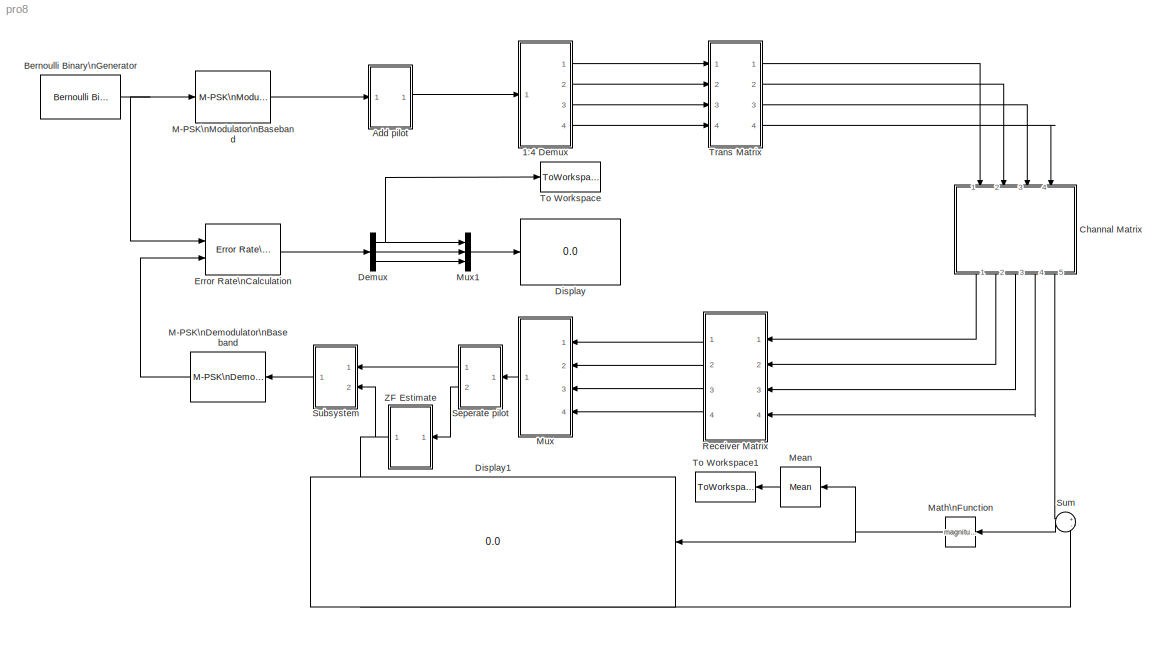
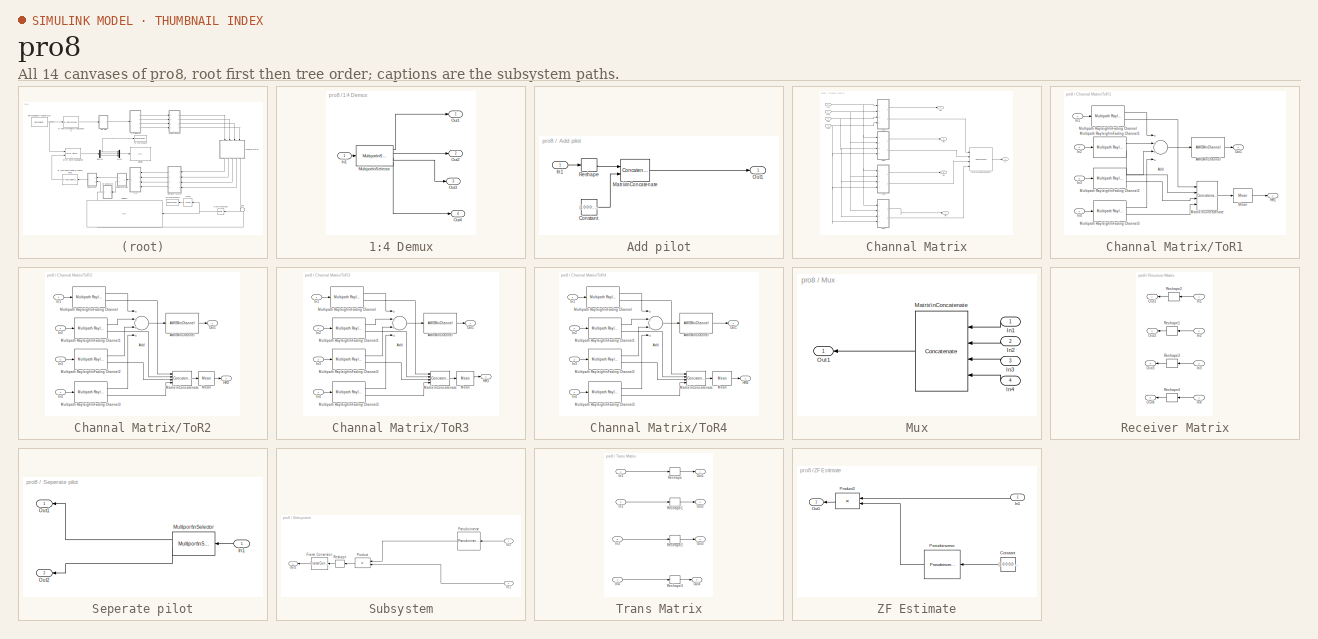
[diagram: thumbnail index - all 14 canvases of the model, root first then tree order]
MODEL pro8
KIND model
BLOCK [SubSystem] 1:4 Demux
  FunctionWithSeparateData = off
  MaskHideContents = off
  MinAlgLoopOccurrences = off
  Opaque = off
  Ports = [1, 4]
  PropExecContextOutsideSubsystem = off
  RTWSystemCode = Auto
  RequestExecContextInheritance = off
  SID = 126
BLOCK [Inport] 1:4 Demux/In1
  IconDisplay = Port number
  SID = 129
BLOCK [Reference] 1:4 Demux/Multiport\nSelector  REF=dspindex/Multiport\nSelector
  Ports = [1, 4]
  SID = 19
  SourceBlock = dspindex/Multiport\nSelector
  SourceType = Multiport Selector
  idxCellArray = { 1, 2, 3, 4 }
  idxErrMode = Clip Index
  rowsOrCols = Rows
BLOCK [Outport] 1:4 Demux/Out1
  IconDisplay = Port number
  SID = 127
BLOCK [Outport] 1:4 Demux/Out2
  IconDisplay = Port number
  Port = 2
  SID = 128
BLOCK [Outport] 1:4 Demux/Out3
  IconDisplay = Port number
  Port = 3
  SID = 130
BLOCK [Outport] 1:4 Demux/Out4
  IconDisplay = Port number
  Port = 4
  SID = 131
BLOCK [SubSystem] Add pilot
  FunctionWithSeparateData = off
  MaskHideContents = off
  MinAlgLoopOccurrences = off
  Opaque = off
  Ports = [1, 1]
  PropExecContextOutsideSubsystem = off
  RTWSystemCode = Auto
  RequestExecContextInheritance = off
  SID = 84
BLOCK [Constant] Add pilot/Constant
  OutDataType = fixdt(1, 16)
  OutScaling = 2^0
  SID = 17
  SampleTime = 1e-4
  Value = [1 0 0 0 ; 0 1 0 0;0 0 1 0; 0 0 0 1]
BLOCK [Inport] Add pilot/In1
  IconDisplay = Port number
  SID = 85
BLOCK [Concatenate] Add pilot/Matrix\nConcatenate
  ConcatenateDimension = 2
  Mode = Multidimensional array
  Ports = [2, 1]
  SID = 16
BLOCK [Outport] Add pilot/Out1
  IconDisplay = Port number
  SID = 86
BLOCK [Reshape] Add pilot/Reshape
  OutputDimensionality = Customize
  OutputDimensions = [4,96]
  Ports = [1, 1]
  SID = 18
BLOCK [Reference] Bernoulli Binary\nGenerator  REF=commrandsrc2/Bernoulli Binary\nGenerator
  DialogController = commDDGCreate
  DialogControllerArgs = DataTag0
  FunctionWithSeparateData = off
  P = 0.5
  Ports = [0, 1]
  RTWMemSecDataConstants = Inherit from model
  RTWMemSecDataInternal = Inherit from model
  RTWMemSecDataParameters = Inherit from model
  RTWMemSecFuncExecute = Inherit from model
  RTWMemSecFuncInitTerm = Inherit from model
  SID = 13
  ShowPortLabels = FromPortIcon
  SourceBlock = commrandsrc2/Bernoulli Binary\nGenerator
  SourceType = Bernoulli Binary Generator
  SystemSampleTime = -1
  Ts = 1e-4/(4*4*96)
  frameBased = on
  orient = off
  outDataType = boolean
  sampPerFrame = 4*4*96
  seed = 61
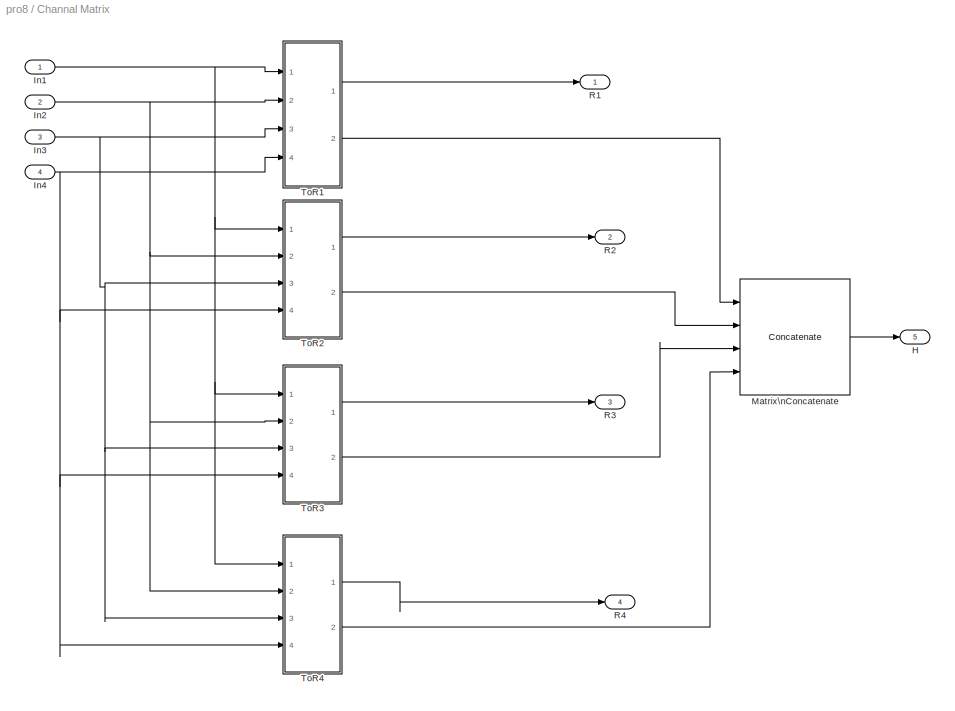
BLOCK [SubSystem] Channal Matrix
  FunctionWithSeparateData = off
  MaskHideContents = off
  MinAlgLoopOccurrences = off
  Opaque = off
  Ports = [4, 5]
  PropExecContextOutsideSubsystem = off
  RTWSystemCode = Auto
  RequestExecContextInheritance = off
  SID = 142
BLOCK [Outport] Channal Matrix/H
  IconDisplay = Port number
  Port = 5
  SID = 409
BLOCK [Inport] Channal Matrix/In1
  IconDisplay = Port number
  SID = 143
BLOCK [Inport] Channal Matrix/In2
  IconDisplay = Port number
  Port = 2
  SID = 144
BLOCK [Inport] Channal Matrix/In3
  IconDisplay = Port number
  Port = 3
  SID = 146
BLOCK [Inport] Channal Matrix/In4
  IconDisplay = Port number
  Port = 4
  SID = 147
BLOCK [Concatenate] Channal Matrix/Matrix\nConcatenate
  Mode = Multidimensional array
  NumInputs = 4
  Ports = [4, 1]
  SID = 408
BLOCK [Outport] Channal Matrix/R1
  IconDisplay = Port number
  SID = 145
BLOCK [Outport] Channal Matrix/R2
  IconDisplay = Port number
  Port = 2
  SID = 208
BLOCK [Outport] Channal Matrix/R3
  IconDisplay = Port number
  Port = 3
  SID = 209
BLOCK [Outport] Channal Matrix/R4
  IconDisplay = Port number
  Port = 4
  SID = 210
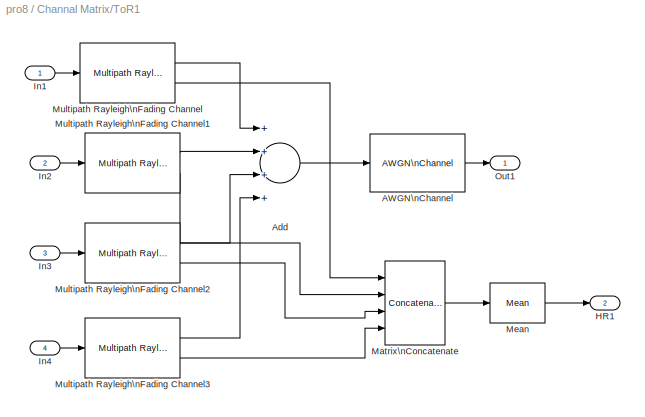
BLOCK [SubSystem] Channal Matrix/ToR1
  FunctionWithSeparateData = off
  MaskHideContents = off
  MinAlgLoopOccurrences = off
  Opaque = off
  Ports = [4, 2]
  PropExecContextOutsideSubsystem = off
  RTWSystemCode = Auto
  RequestExecContextInheritance = off
  SID = 136
BLOCK [Reference] Channal Matrix/ToR1/AWGN\nChannel  REF=commchan3/AWGN\nChannel
  EbNodB = 10
  EsNodB = 10
  FunctionWithSeparateData = off
  Ports = [1, 1]
  Ps = 0.25
  RTWMemSecDataConstants = Inherit from model
  RTWMemSecDataInternal = Inherit from model
  RTWMemSecDataParameters = Inherit from model
  RTWMemSecFuncExecute = Inherit from model
  RTWMemSecFuncInitTerm = Inherit from model
  SID = 67
  SNRdB = snr
  ShowPortLabels = FromPortIcon
  SourceBlock = commchan3/AWGN\nChannel
  SourceType = AWGN Channel
  SystemSampleTime = -1
  Tsym = 1e-6
  bitsPerSym = 4
  noiseMode = Signal to noise ratio  (SNR)
  seed = 73
  variance = 1
BLOCK [Sum] Channal Matrix/ToR1/Add
  InputSameDT = off
  Inputs = ++++
  OutDataType = fixdt(1, 16)
  OutDataTypeMode = Inherit via internal rule
  OutDataTypeStr = Inherit: Inherit via internal rule
  OutScaling = 2^-10
  Ports = [4, 1]
  SID = 132
  SaturateOnIntegerOverflow = off
BLOCK [Outport] Channal Matrix/ToR1/HR1
  IconDisplay = Port number
  Port = 2
  SID = 379
BLOCK [Inport] Channal Matrix/ToR1/In1
  IconDisplay = Port number
  SID = 137
BLOCK [Inport] Channal Matrix/ToR1/In2
  IconDisplay = Port number
  Port = 2
  SID = 139
BLOCK [Inport] Channal Matrix/ToR1/In3
  IconDisplay = Port number
  Port = 3
  SID = 140
BLOCK [Inport] Channal Matrix/ToR1/In4
  IconDisplay = Port number
  Port = 4
  SID = 141
BLOCK [Concatenate] Channal Matrix/ToR1/Matrix\nConcatenate
  ConcatenateDimension = 2
  Mode = Multidimensional array
  NumInputs = 4
  Ports = [4, 1]
  SID = 378
BLOCK [Reference] Channal Matrix/ToR1/Mean  REF=dspstat3/Mean
  DialogController = dspDDGCreate
  DialogControllerArgs = DataTag1
  LockScale = off
  Ports = [1, 1]
  SID = 422
  SourceBlock = dspstat3/Mean
  SourceType = Mean
  accumDataTypeStr = Inherit: Same as input
  accumFracLength = 30
  accumLastDataTypeStr = Inherit: Same as input
  accumMode = Same as input
  accumWordLength = 32
  additionalParams = off
  allowOverrides = on
  dimension = 1
  directionMode = Each column
  outputDataTypeStr = Inherit: Same as accumulator
  outputFracLength = 30
  outputLastDataTypeStr = Inherit: Same as accumulator
  outputMax = []
  outputMin = []
  outputMode = Same as accumulator
  outputWordLength = 32
  overflowMode = off
  reset_popup = None
  roiEnable = off
  roiFlag = off
  roiOutput = Individual statistics for each ROI
  roiPortion = Entire ROI
  roiType = Rectangles
  roundingMode = Floor
  run = off
  treatSBRowAsCol = on
BLOCK [Reference] Channal Matrix/ToR1/Multipath Rayleigh\nFading Channel  REF=commchan3/Multipath Rayleigh\nFading Channel
  FunctionWithSeparateData = off
  Ports = [1, 2]
  RTWMemSecDataConstants = Inherit from model
  RTWMemSecDataInternal = Inherit from model
  RTWMemSecDataParameters = Inherit from model
  RTWMemSecFuncExecute = Inherit from model
  RTWMemSecFuncInitTerm = Inherit from model
  SID = 68
  ShowPortLabels = FromPortIcon
  SourceBlock = commchan3/Multipath Rayleigh\nFading Channel
  SourceType = Multipath Rayleigh Fading Channel
  SystemSampleTime = -1
  avgPathGaindB = [0]
  centerFreqGaussian1 = 0.0
  centerFreqGaussian2 = 0.0
  coeffBell = 9
  coeffRounded = [1 -1.72 0.785]
  dopplerSpectrum = doppler.jakes
  enableProbe = 0
  freqMinMaxAJakes = [0 1]
  freqMinMaxRJakes = [0 1]
  gainGaussian1 = 0.5
  gainGaussian2 = 0.5
  maxDopplerShift = 40
  normalizePathGains = on
  openVisAtStart = off
  outDelay = off
  outPathGains = on
  pathDelays = [0]
  seed = 12345
  sigmaGaussian = 1/sqrt(2)
  sigmaGaussian1 = 1/sqrt(2)
  sigmaGaussian2 = 1/sqrt(2)
  spectrumType = Jakes
BLOCK [Reference] Channal Matrix/ToR1/Multipath Rayleigh\nFading Channel1  REF=commchan3/Multipath Rayleigh\nFading Channel
  FunctionWithSeparateData = off
  Ports = [1, 2]
  RTWMemSecDataConstants = Inherit from model
  RTWMemSecDataInternal = Inherit from model
  RTWMemSecDataParameters = Inherit from model
  RTWMemSecFuncExecute = Inherit from model
  RTWMemSecFuncInitTerm = Inherit from model
  SID = 133
  ShowPortLabels = FromPortIcon
  SourceBlock = commchan3/Multipath Rayleigh\nFading Channel
  SourceType = Multipath Rayleigh Fading Channel
  SystemSampleTime = -1
  avgPathGaindB = [0]
  centerFreqGaussian1 = 0.0
  centerFreqGaussian2 = 0.0
  coeffBell = 9
  coeffRounded = [1 -1.72 0.785]
  dopplerSpectrum = doppler.jakes
  enableProbe = 0
  freqMinMaxAJakes = [0 1]
  freqMinMaxRJakes = [0 1]
  gainGaussian1 = 0.5
  gainGaussian2 = 0.5
  maxDopplerShift = 40
  normalizePathGains = on
  openVisAtStart = off
  outDelay = off
  outPathGains = on
  pathDelays = [0]
  seed = 15678
  sigmaGaussian = 1/sqrt(2)
  sigmaGaussian1 = 1/sqrt(2)
  sigmaGaussian2 = 1/sqrt(2)
  spectrumType = Jakes
BLOCK [Reference] Channal Matrix/ToR1/Multipath Rayleigh\nFading Channel2  REF=commchan3/Multipath Rayleigh\nFading Channel
  FunctionWithSeparateData = off
  Ports = [1, 2]
  RTWMemSecDataConstants = Inherit from model
  RTWMemSecDataInternal = Inherit from model
  RTWMemSecDataParameters = Inherit from model
  RTWMemSecFuncExecute = Inherit from model
  RTWMemSecFuncInitTerm = Inherit from model
  SID = 134
  ShowPortLabels = FromPortIcon
  SourceBlock = commchan3/Multipath Rayleigh\nFading Channel
  SourceType = Multipath Rayleigh Fading Channel
  SystemSampleTime = -1
  avgPathGaindB = [0]
  centerFreqGaussian1 = 0.0
  centerFreqGaussian2 = 0.0
  coeffBell = 9
  coeffRounded = [1 -1.72 0.785]
  dopplerSpectrum = doppler.jakes
  enableProbe = 0
  freqMinMaxAJakes = [0 1]
  freqMinMaxRJakes = [0 1]
  gainGaussian1 = 0.5
  gainGaussian2 = 0.5
  maxDopplerShift = 40
  normalizePathGains = on
  openVisAtStart = off
  outDelay = off
  outPathGains = on
  pathDelays = [0]
  seed = 13987
  sigmaGaussian = 1/sqrt(2)
  sigmaGaussian1 = 1/sqrt(2)
  sigmaGaussian2 = 1/sqrt(2)
  spectrumType = Jakes
BLOCK [Reference] Channal Matrix/ToR1/Multipath Rayleigh\nFading Channel3  REF=commchan3/Multipath Rayleigh\nFading Channel
  FunctionWithSeparateData = off
  Ports = [1, 2]
  RTWMemSecDataConstants = Inherit from model
  RTWMemSecDataInternal = Inherit from model
  RTWMemSecDataParameters = Inherit from model
  RTWMemSecFuncExecute = Inherit from model
  RTWMemSecFuncInitTerm = Inherit from model
  SID = 135
  ShowPortLabels = FromPortIcon
  SourceBlock = commchan3/Multipath Rayleigh\nFading Channel
  SourceType = Multipath Rayleigh Fading Channel
  SystemSampleTime = -1
  avgPathGaindB = [0]
  centerFreqGaussian1 = 0.0
  centerFreqGaussian2 = 0.0
  coeffBell = 9
  coeffRounded = [1 -1.72 0.785]
  dopplerSpectrum = doppler.jakes
  enableProbe = 0
  freqMinMaxAJakes = [0 1]
  freqMinMaxRJakes = [0 1]
  gainGaussian1 = 0.5
  gainGaussian2 = 0.5
  maxDopplerShift = 40
  normalizePathGains = on
  openVisAtStart = off
  outDelay = off
  outPathGains = on
  pathDelays = [0]
  seed = 19876
  sigmaGaussian = 1/sqrt(2)
  sigmaGaussian1 = 1/sqrt(2)
  sigmaGaussian2 = 1/sqrt(2)
  spectrumType = Jakes
BLOCK [Outport] Channal Matrix/ToR1/Out1
  IconDisplay = Port number
  SID = 138
BLOCK [SubSystem] Channal Matrix/ToR2
  FunctionWithSeparateData = off
  MaskHideContents = off
  MinAlgLoopOccurrences = off
  Opaque = off
  Ports = [4, 2]
  PropExecContextOutsideSubsystem = off
  RTWSystemCode = Auto
  RequestExecContextInheritance = off
  SID = 148
BLOCK [Reference] Channal Matrix/ToR2/AWGN\nChannel  REF=commchan3/AWGN\nChannel
  EbNodB = 10
  EsNodB = 10
  FunctionWithSeparateData = off
  Ports = [1, 1]
  Ps = 0.25
  RTWMemSecDataConstants = Inherit from model
  RTWMemSecDataInternal = Inherit from model
  RTWMemSecDataParameters = Inherit from model
  RTWMemSecFuncExecute = Inherit from model
  RTWMemSecFuncInitTerm = Inherit from model
  SID = 153
  SNRdB = snr
  ShowPortLabels = FromPortIcon
  SourceBlock = commchan3/AWGN\nChannel
  SourceType = AWGN Channel
  SystemSampleTime = -1
  Tsym = 1e-6
  bitsPerSym = 4
  noiseMode = Signal to noise ratio  (SNR)
  seed = 210
  variance = 1
BLOCK [Sum] Channal Matrix/ToR2/Add
  InputSameDT = off
  Inputs = ++++
  OutDataType = fixdt(1, 16)
  OutDataTypeMode = Inherit via internal rule
  OutDataTypeStr = Inherit: Inherit via internal rule
  OutScaling = 2^-10
  Ports = [4, 1]
  SID = 154
  SaturateOnIntegerOverflow = off
BLOCK [Outport] Channal Matrix/ToR2/HR2
  IconDisplay = Port number
  Port = 2
  SID = 377
BLOCK [Inport] Channal Matrix/ToR2/In1
  IconDisplay = Port number
  SID = 149
BLOCK [Inport] Channal Matrix/ToR2/In2
  IconDisplay = Port number
  Port = 2
  SID = 150
BLOCK [Inport] Channal Matrix/ToR2/In3
  IconDisplay = Port number
  Port = 3
  SID = 151
BLOCK [Inport] Channal Matrix/ToR2/In4
  IconDisplay = Port number
  Port = 4
  SID = 152
BLOCK [Concatenate] Channal Matrix/ToR2/Matrix\nConcatenate
  ConcatenateDimension = 2
  Mode = Multidimensional array
  NumInputs = 4
  Ports = [4, 1]
  SID = 376
BLOCK [Reference] Channal Matrix/ToR2/Mean  REF=dspstat3/Mean
  DialogController = dspDDGCreate
  DialogControllerArgs = DataTag2
  LockScale = off
  Ports = [1, 1]
  SID = 423
  SourceBlock = dspstat3/Mean
  SourceType = Mean
  accumDataTypeStr = Inherit: Same as input
  accumFracLength = 30
  accumLastDataTypeStr = Inherit: Same as input
  accumMode = Same as input
  accumWordLength = 32
  additionalParams = off
  allowOverrides = on
  dimension = 1
  directionMode = Each column
  outputDataTypeStr = Inherit: Same as accumulator
  outputFracLength = 30
  outputLastDataTypeStr = Inherit: Same as accumulator
  outputMax = []
  outputMin = []
  outputMode = Same as accumulator
  outputWordLength = 32
  overflowMode = off
  reset_popup = None
  roiEnable = off
  roiFlag = off
  roiOutput = Individual statistics for each ROI
  roiPortion = Entire ROI
  roiType = Rectangles
  roundingMode = Floor
  run = off
  treatSBRowAsCol = on
BLOCK [Reference] Channal Matrix/ToR2/Multipath Rayleigh\nFading Channel  REF=commchan3/Multipath Rayleigh\nFading Channel
  FunctionWithSeparateData = off
  Ports = [1, 2]
  RTWMemSecDataConstants = Inherit from model
  RTWMemSecDataInternal = Inherit from model
  RTWMemSecDataParameters = Inherit from model
  RTWMemSecFuncExecute = Inherit from model
  RTWMemSecFuncInitTerm = Inherit from model
  SID = 155
  ShowPortLabels = FromPortIcon
  SourceBlock = commchan3/Multipath Rayleigh\nFading Channel
  SourceType = Multipath Rayleigh Fading Channel
  SystemSampleTime = -1
  avgPathGaindB = [0]
  centerFreqGaussian1 = 0.0
  centerFreqGaussian2 = 0.0
  coeffBell = 9
  coeffRounded = [1 -1.72 0.785]
  dopplerSpectrum = doppler.jakes
  enableProbe = 0
  freqMinMaxAJakes = [0 1]
  freqMinMaxRJakes = [0 1]
  gainGaussian1 = 0.5
  gainGaussian2 = 0.5
  maxDopplerShift = 40
  normalizePathGains = on
  openVisAtStart = off
  outDelay = off
  outPathGains = on
  pathDelays = [0]
  seed = 2
  sigmaGaussian = 1/sqrt(2)
  sigmaGaussian1 = 1/sqrt(2)
  sigmaGaussian2 = 1/sqrt(2)
  spectrumType = Jakes
BLOCK [Reference] Channal Matrix/ToR2/Multipath Rayleigh\nFading Channel1  REF=commchan3/Multipath Rayleigh\nFading Channel
  FunctionWithSeparateData = off
  Ports = [1, 2]
  RTWMemSecDataConstants = Inherit from model
  RTWMemSecDataInternal = Inherit from model
  RTWMemSecDataParameters = Inherit from model
  RTWMemSecFuncExecute = Inherit from model
  RTWMemSecFuncInitTerm = Inherit from model
  SID = 156
  ShowPortLabels = FromPortIcon
  SourceBlock = commchan3/Multipath Rayleigh\nFading Channel
  SourceType = Multipath Rayleigh Fading Channel
  SystemSampleTime = -1
  avgPathGaindB = [0]
  centerFreqGaussian1 = 0.0
  centerFreqGaussian2 = 0.0
  coeffBell = 9
  coeffRounded = [1 -1.72 0.785]
  dopplerSpectrum = doppler.jakes
  enableProbe = 0
  freqMinMaxAJakes = [0 1]
  freqMinMaxRJakes = [0 1]
  gainGaussian1 = 0.5
  gainGaussian2 = 0.5
  maxDopplerShift = 40
  normalizePathGains = on
  openVisAtStart = off
  outDelay = off
  outPathGains = on
  pathDelays = [0]
  seed = 23456
  sigmaGaussian = 1/sqrt(2)
  sigmaGaussian1 = 1/sqrt(2)
  sigmaGaussian2 = 1/sqrt(2)
  spectrumType = Jakes
BLOCK [Reference] Channal Matrix/ToR2/Multipath Rayleigh\nFading Channel2  REF=commchan3/Multipath Rayleigh\nFading Channel
  FunctionWithSeparateData = off
  Ports = [1, 2]
  RTWMemSecDataConstants = Inherit from model
  RTWMemSecDataInternal = Inherit from model
  RTWMemSecDataParameters = Inherit from model
  RTWMemSecFuncExecute = Inherit from model
  RTWMemSecFuncInitTerm = Inherit from model
  SID = 157
  ShowPortLabels = FromPortIcon
  SourceBlock = commchan3/Multipath Rayleigh\nFading Channel
  SourceType = Multipath Rayleigh Fading Channel
  SystemSampleTime = -1
  avgPathGaindB = [0]
  centerFreqGaussian1 = 0.0
  centerFreqGaussian2 = 0.0
  coeffBell = 9
  coeffRounded = [1 -1.72 0.785]
  dopplerSpectrum = doppler.jakes
  enableProbe = 0
  freqMinMaxAJakes = [0 1]
  freqMinMaxRJakes = [0 1]
  gainGaussian1 = 0.5
  gainGaussian2 = 0.5
  maxDopplerShift = 40
  normalizePathGains = on
  openVisAtStart = off
  outDelay = off
  outPathGains = on
  pathDelays = [0]
  seed = 29876
  sigmaGaussian = 1/sqrt(2)
  sigmaGaussian1 = 1/sqrt(2)
  sigmaGaussian2 = 1/sqrt(2)
  spectrumType = Jakes
BLOCK [Reference] Channal Matrix/ToR2/Multipath Rayleigh\nFading Channel3  REF=commchan3/Multipath Rayleigh\nFading Channel
  FunctionWithSeparateData = off
  Ports = [1, 2]
  RTWMemSecDataConstants = Inherit from model
  RTWMemSecDataInternal = Inherit from model
  RTWMemSecDataParameters = Inherit from model
  RTWMemSecFuncExecute = Inherit from model
  RTWMemSecFuncInitTerm = Inherit from model
  SID = 158
  ShowPortLabels = FromPortIcon
  SourceBlock = commchan3/Multipath Rayleigh\nFading Channel
  SourceType = Multipath Rayleigh Fading Channel
  SystemSampleTime = -1
  avgPathGaindB = [0]
  centerFreqGaussian1 = 0.0
  centerFreqGaussian2 = 0.0
  coeffBell = 9
  coeffRounded = [1 -1.72 0.785]
  dopplerSpectrum = doppler.jakes
  enableProbe = 0
  freqMinMaxAJakes = [0 1]
  freqMinMaxRJakes = [0 1]
  gainGaussian1 = 0.5
  gainGaussian2 = 0.5
  maxDopplerShift = 40
  normalizePathGains = on
  openVisAtStart = off
  outDelay = off
  outPathGains = on
  pathDelays = [0]
  seed = 27345
  sigmaGaussian = 1/sqrt(2)
  sigmaGaussian1 = 1/sqrt(2)
  sigmaGaussian2 = 1/sqrt(2)
  spectrumType = Jakes
BLOCK [Outport] Channal Matrix/ToR2/Out1
  IconDisplay = Port number
  SID = 159
BLOCK [SubSystem] Channal Matrix/ToR3
  FunctionWithSeparateData = off
  MaskHideContents = off
  MinAlgLoopOccurrences = off
  Opaque = off
  Ports = [4, 2]
  PropExecContextOutsideSubsystem = off
  RTWSystemCode = Auto
  RequestExecContextInheritance = off
  SID = 380
BLOCK [Reference] Channal Matrix/ToR3/AWGN\nChannel  REF=commchan3/AWGN\nChannel
  EbNodB = 10
  EsNodB = 10
  FunctionWithSeparateData = off
  Ports = [1, 1]
  Ps = 0.25
  RTWMemSecDataConstants = Inherit from model
  RTWMemSecDataInternal = Inherit from model
  RTWMemSecDataParameters = Inherit from model
  RTWMemSecFuncExecute = Inherit from model
  RTWMemSecFuncInitTerm = Inherit from model
  SID = 385
  SNRdB = snr
  ShowPortLabels = FromPortIcon
  SourceBlock = commchan3/AWGN\nChannel
  SourceType = AWGN Channel
  SystemSampleTime = -1
  Tsym = 1e-6
  bitsPerSym = 4
  noiseMode = Signal to noise ratio  (SNR)
  seed = 310
  variance = 1
BLOCK [Sum] Channal Matrix/ToR3/Add
  InputSameDT = off
  Inputs = ++++
  OutDataType = fixdt(1, 16)
  OutDataTypeMode = Inherit via internal rule
  OutDataTypeStr = Inherit: Inherit via internal rule
  OutScaling = 2^-10
  Ports = [4, 1]
  SID = 386
  SaturateOnIntegerOverflow = off
BLOCK [Outport] Channal Matrix/ToR3/HR3
  IconDisplay = Port number
  Port = 2
  SID = 393
BLOCK [Inport] Channal Matrix/ToR3/In1
  IconDisplay = Port number
  SID = 381
BLOCK [Inport] Channal Matrix/ToR3/In2
  IconDisplay = Port number
  Port = 2
  SID = 382
BLOCK [Inport] Channal Matrix/ToR3/In3
  IconDisplay = Port number
  Port = 3
  SID = 383
BLOCK [Inport] Channal Matrix/ToR3/In4
  IconDisplay = Port number
  Port = 4
  SID = 384
BLOCK [Concatenate] Channal Matrix/ToR3/Matrix\nConcatenate
  ConcatenateDimension = 2
  Mode = Multidimensional array
  NumInputs = 4
  Ports = [4, 1]
  SID = 387
BLOCK [Reference] Channal Matrix/ToR3/Mean  REF=dspstat3/Mean
  DialogController = dspDDGCreate
  DialogControllerArgs = DataTag3
  LockScale = off
  Ports = [1, 1]
  SID = 424
  SourceBlock = dspstat3/Mean
  SourceType = Mean
  accumDataTypeStr = Inherit: Same as input
  accumFracLength = 30
  accumLastDataTypeStr = Inherit: Same as input
  accumMode = Same as input
  accumWordLength = 32
  additionalParams = off
  allowOverrides = on
  dimension = 1
  directionMode = Each column
  outputDataTypeStr = Inherit: Same as accumulator
  outputFracLength = 30
  outputLastDataTypeStr = Inherit: Same as accumulator
  outputMax = []
  outputMin = []
  outputMode = Same as accumulator
  outputWordLength = 32
  overflowMode = off
  reset_popup = None
  roiEnable = off
  roiFlag = off
  roiOutput = Individual statistics for each ROI
  roiPortion = Entire ROI
  roiType = Rectangles
  roundingMode = Floor
  run = off
  treatSBRowAsCol = on
BLOCK [Reference] Channal Matrix/ToR3/Multipath Rayleigh\nFading Channel  REF=commchan3/Multipath Rayleigh\nFading Channel
  FunctionWithSeparateData = off
  Ports = [1, 2]
  RTWMemSecDataConstants = Inherit from model
  RTWMemSecDataInternal = Inherit from model
  RTWMemSecDataParameters = Inherit from model
  RTWMemSecFuncExecute = Inherit from model
  RTWMemSecFuncInitTerm = Inherit from model
  SID = 388
  ShowPortLabels = FromPortIcon
  SourceBlock = commchan3/Multipath Rayleigh\nFading Channel
  SourceType = Multipath Rayleigh Fading Channel
  SystemSampleTime = -1
  avgPathGaindB = [0]
  centerFreqGaussian1 = 0.0
  centerFreqGaussian2 = 0.0
  coeffBell = 9
  coeffRounded = [1 -1.72 0.785]
  dopplerSpectrum = doppler.jakes
  enableProbe = 0
  freqMinMaxAJakes = [0 1]
  freqMinMaxRJakes = [0 1]
  gainGaussian1 = 0.5
  gainGaussian2 = 0.5
  maxDopplerShift = 40
  normalizePathGains = on
  openVisAtStart = off
  outDelay = off
  outPathGains = on
  pathDelays = [0]
  seed = 34567
  sigmaGaussian = 1/sqrt(2)
  sigmaGaussian1 = 1/sqrt(2)
  sigmaGaussian2 = 1/sqrt(2)
  spectrumType = Jakes
BLOCK [Reference] Channal Matrix/ToR3/Multipath Rayleigh\nFading Channel1  REF=commchan3/Multipath Rayleigh\nFading Channel
  FunctionWithSeparateData = off
  Ports = [1, 2]
  RTWMemSecDataConstants = Inherit from model
  RTWMemSecDataInternal = Inherit from model
  RTWMemSecDataParameters = Inherit from model
  RTWMemSecFuncExecute = Inherit from model
  RTWMemSecFuncInitTerm = Inherit from model
  SID = 389
  ShowPortLabels = FromPortIcon
  SourceBlock = commchan3/Multipath Rayleigh\nFading Channel
  SourceType = Multipath Rayleigh Fading Channel
  SystemSampleTime = -1
  avgPathGaindB = [0]
  centerFreqGaussian1 = 0.0
  centerFreqGaussian2 = 0.0
  coeffBell = 9
  coeffRounded = [1 -1.72 0.785]
  dopplerSpectrum = doppler.jakes
  enableProbe = 0
  freqMinMaxAJakes = [0 1]
  freqMinMaxRJakes = [0 1]
  gainGaussian1 = 0.5
  gainGaussian2 = 0.5
  maxDopplerShift = 40
  normalizePathGains = on
  openVisAtStart = off
  outDelay = off
  outPathGains = on
  pathDelays = [0]
  seed = 39876
  sigmaGaussian = 1/sqrt(2)
  sigmaGaussian1 = 1/sqrt(2)
  sigmaGaussian2 = 1/sqrt(2)
  spectrumType = Jakes
BLOCK [Reference] Channal Matrix/ToR3/Multipath Rayleigh\nFading Channel2  REF=commchan3/Multipath Rayleigh\nFading Channel
  FunctionWithSeparateData = off
  Ports = [1, 2]
  RTWMemSecDataConstants = Inherit from model
  RTWMemSecDataInternal = Inherit from model
  RTWMemSecDataParameters = Inherit from model
  RTWMemSecFuncExecute = Inherit from model
  RTWMemSecFuncInitTerm = Inherit from model
  SID = 390
  ShowPortLabels = FromPortIcon
  SourceBlock = commchan3/Multipath Rayleigh\nFading Channel
  SourceType = Multipath Rayleigh Fading Channel
  SystemSampleTime = -1
  avgPathGaindB = [0]
  centerFreqGaussian1 = 0.0
  centerFreqGaussian2 = 0.0
  coeffBell = 9
  coeffRounded = [1 -1.72 0.785]
  dopplerSpectrum = doppler.jakes
  enableProbe = 0
  freqMinMaxAJakes = [0 1]
  freqMinMaxRJakes = [0 1]
  gainGaussian1 = 0.5
  gainGaussian2 = 0.5
  maxDopplerShift = 40
  normalizePathGains = on
  openVisAtStart = off
  outDelay = off
  outPathGains = on
  pathDelays = [0]
  seed = 36512
  sigmaGaussian = 1/sqrt(2)
  sigmaGaussian1 = 1/sqrt(2)
  sigmaGaussian2 = 1/sqrt(2)
  spectrumType = Jakes
BLOCK [Reference] Channal Matrix/ToR3/Multipath Rayleigh\nFading Channel3  REF=commchan3/Multipath Rayleigh\nFading Channel
  FunctionWithSeparateData = off
  Ports = [1, 2]
  RTWMemSecDataConstants = Inherit from model
  RTWMemSecDataInternal = Inherit from model
  RTWMemSecDataParameters = Inherit from model
  RTWMemSecFuncExecute = Inherit from model
  RTWMemSecFuncInitTerm = Inherit from model
  SID = 391
  ShowPortLabels = FromPortIcon
  SourceBlock = commchan3/Multipath Rayleigh\nFading Channel
  SourceType = Multipath Rayleigh Fading Channel
  SystemSampleTime = -1
  avgPathGaindB = [0]
  centerFreqGaussian1 = 0.0
  centerFreqGaussian2 = 0.0
  coeffBell = 9
  coeffRounded = [1 -1.72 0.785]
  dopplerSpectrum = doppler.jakes
  enableProbe = 0
  freqMinMaxAJakes = [0 1]
  freqMinMaxRJakes = [0 1]
  gainGaussian1 = 0.5
  gainGaussian2 = 0.5
  maxDopplerShift = 40
  normalizePathGains = on
  openVisAtStart = off
  outDelay = off
  outPathGains = on
  pathDelays = [0]
  seed = 31111
  sigmaGaussian = 1/sqrt(2)
  sigmaGaussian1 = 1/sqrt(2)
  sigmaGaussian2 = 1/sqrt(2)
  spectrumType = Jakes
BLOCK [Outport] Channal Matrix/ToR3/Out1
  IconDisplay = Port number
  SID = 392
BLOCK [SubSystem] Channal Matrix/ToR4
  FunctionWithSeparateData = off
  MaskHideContents = off
  MinAlgLoopOccurrences = off
  Opaque = off
  Ports = [4, 2]
  PropExecContextOutsideSubsystem = off
  RTWSystemCode = Auto
  RequestExecContextInheritance = off
  SID = 394
BLOCK [Reference] Channal Matrix/ToR4/AWGN\nChannel  REF=commchan3/AWGN\nChannel
  EbNodB = 10
  EsNodB = 10
  FunctionWithSeparateData = off
  Ports = [1, 1]
  Ps = 0.25
  RTWMemSecDataConstants = Inherit from model
  RTWMemSecDataInternal = Inherit from model
  RTWMemSecDataParameters = Inherit from model
  RTWMemSecFuncExecute = Inherit from model
  RTWMemSecFuncInitTerm = Inherit from model
  SID = 399
  SNRdB = snr
  ShowPortLabels = FromPortIcon
  SourceBlock = commchan3/AWGN\nChannel
  SourceType = AWGN Channel
  SystemSampleTime = -1
  Tsym = 1e-6
  bitsPerSym = 4
  noiseMode = Signal to noise ratio  (SNR)
  seed = 310
  variance = 1
BLOCK [Sum] Channal Matrix/ToR4/Add
  InputSameDT = off
  Inputs = ++++
  OutDataType = fixdt(1, 16)
  OutDataTypeMode = Inherit via internal rule
  OutDataTypeStr = Inherit: Inherit via internal rule
  OutScaling = 2^-10
  Ports = [4, 1]
  SID = 400
  SaturateOnIntegerOverflow = off
BLOCK [Outport] Channal Matrix/ToR4/HR4
  IconDisplay = Port number
  Port = 2
  SID = 407
BLOCK [Inport] Channal Matrix/ToR4/In1
  IconDisplay = Port number
  SID = 395
BLOCK [Inport] Channal Matrix/ToR4/In2
  IconDisplay = Port number
  Port = 2
  SID = 396
BLOCK [Inport] Channal Matrix/ToR4/In3
  IconDisplay = Port number
  Port = 3
  SID = 397
BLOCK [Inport] Channal Matrix/ToR4/In4
  IconDisplay = Port number
  Port = 4
  SID = 398
BLOCK [Concatenate] Channal Matrix/ToR4/Matrix\nConcatenate
  ConcatenateDimension = 2
  Mode = Multidimensional array
  NumInputs = 4
  Ports = [4, 1]
  SID = 401
BLOCK [Reference] Channal Matrix/ToR4/Mean  REF=dspstat3/Mean
  DialogController = dspDDGCreate
  DialogControllerArgs = DataTag4
  LockScale = off
  Ports = [1, 1]
  SID = 425
  SourceBlock = dspstat3/Mean
  SourceType = Mean
  accumDataTypeStr = Inherit: Same as input
  accumFracLength = 30
  accumLastDataTypeStr = Inherit: Same as input
  accumMode = Same as input
  accumWordLength = 32
  additionalParams = off
  allowOverrides = on
  dimension = 1
  directionMode = Each column
  outputDataTypeStr = Inherit: Same as accumulator
  outputFracLength = 30
  outputLastDataTypeStr = Inherit: Same as accumulator
  outputMax = []
  outputMin = []
  outputMode = Same as accumulator
  outputWordLength = 32
  overflowMode = off
  reset_popup = None
  roiEnable = off
  roiFlag = off
  roiOutput = Individual statistics for each ROI
  roiPortion = Entire ROI
  roiType = Rectangles
  roundingMode = Floor
  run = off
  treatSBRowAsCol = on
BLOCK [Reference] Channal Matrix/ToR4/Multipath Rayleigh\nFading Channel  REF=commchan3/Multipath Rayleigh\nFading Channel
  FunctionWithSeparateData = off
  Ports = [1, 2]
  RTWMemSecDataConstants = Inherit from model
  RTWMemSecDataInternal = Inherit from model
  RTWMemSecDataParameters = Inherit from model
  RTWMemSecFuncExecute = Inherit from model
  RTWMemSecFuncInitTerm = Inherit from model
  SID = 402
  ShowPortLabels = FromPortIcon
  SourceBlock = commchan3/Multipath Rayleigh\nFading Channel
  SourceType = Multipath Rayleigh Fading Channel
  SystemSampleTime = -1
  avgPathGaindB = [0]
  centerFreqGaussian1 = 0.0
  centerFreqGaussian2 = 0.0
  coeffBell = 9
  coeffRounded = [1 -1.72 0.785]
  dopplerSpectrum = doppler.jakes
  enableProbe = 0
  freqMinMaxAJakes = [0 1]
  freqMinMaxRJakes = [0 1]
  gainGaussian1 = 0.5
  gainGaussian2 = 0.5
  maxDopplerShift = 40
  normalizePathGains = on
  openVisAtStart = off
  outDelay = off
  outPathGains = on
  pathDelays = [0]
  seed = 55555
  sigmaGaussian = 1/sqrt(2)
  sigmaGaussian1 = 1/sqrt(2)
  sigmaGaussian2 = 1/sqrt(2)
  spectrumType = Jakes
BLOCK [Reference] Channal Matrix/ToR4/Multipath Rayleigh\nFading Channel1  REF=commchan3/Multipath Rayleigh\nFading Channel
  FunctionWithSeparateData = off
  Ports = [1, 2]
  RTWMemSecDataConstants = Inherit from model
  RTWMemSecDataInternal = Inherit from model
  RTWMemSecDataParameters = Inherit from model
  RTWMemSecFuncExecute = Inherit from model
  RTWMemSecFuncInitTerm = Inherit from model
  SID = 403
  ShowPortLabels = FromPortIcon
  SourceBlock = commchan3/Multipath Rayleigh\nFading Channel
  SourceType = Multipath Rayleigh Fading Channel
  SystemSampleTime = -1
  avgPathGaindB = [0]
  centerFreqGaussian1 = 0.0
  centerFreqGaussian2 = 0.0
  coeffBell = 9
  coeffRounded = [1 -1.72 0.785]
  dopplerSpectrum = doppler.jakes
  enableProbe = 0
  freqMinMaxAJakes = [0 1]
  freqMinMaxRJakes = [0 1]
  gainGaussian1 = 0.5
  gainGaussian2 = 0.5
  maxDopplerShift = 40
  normalizePathGains = on
  openVisAtStart = off
  outDelay = off
  outPathGains = on
  pathDelays = [0]
  seed = 66666
  sigmaGaussian = 1/sqrt(2)
  sigmaGaussian1 = 1/sqrt(2)
  sigmaGaussian2 = 1/sqrt(2)
  spectrumType = Jakes
BLOCK [Reference] Channal Matrix/ToR4/Multipath Rayleigh\nFading Channel2  REF=commchan3/Multipath Rayleigh\nFading Channel
  FunctionWithSeparateData = off
  Ports = [1, 2]
  RTWMemSecDataConstants = Inherit from model
  RTWMemSecDataInternal = Inherit from model
  RTWMemSecDataParameters = Inherit from model
  RTWMemSecFuncExecute = Inherit from model
  RTWMemSecFuncInitTerm = Inherit from model
  SID = 404
  ShowPortLabels = FromPortIcon
  SourceBlock = commchan3/Multipath Rayleigh\nFading Channel
  SourceType = Multipath Rayleigh Fading Channel
  SystemSampleTime = -1
  avgPathGaindB = [0]
  centerFreqGaussian1 = 0.0
  centerFreqGaussian2 = 0.0
  coeffBell = 9
  coeffRounded = [1 -1.72 0.785]
  dopplerSpectrum = doppler.jakes
  enableProbe = 0
  freqMinMaxAJakes = [0 1]
  freqMinMaxRJakes = [0 1]
  gainGaussian1 = 0.5
  gainGaussian2 = 0.5
  maxDopplerShift = 40
  normalizePathGains = on
  openVisAtStart = off
  outDelay = off
  outPathGains = on
  pathDelays = [0]
  seed = 77777
  sigmaGaussian = 1/sqrt(2)
  sigmaGaussian1 = 1/sqrt(2)
  sigmaGaussian2 = 1/sqrt(2)
  spectrumType = Jakes
BLOCK [Reference] Channal Matrix/ToR4/Multipath Rayleigh\nFading Channel3  REF=commchan3/Multipath Rayleigh\nFading Channel
  FunctionWithSeparateData = off
  Ports = [1, 2]
  RTWMemSecDataConstants = Inherit from model
  RTWMemSecDataInternal = Inherit from model
  RTWMemSecDataParameters = Inherit from model
  RTWMemSecFuncExecute = Inherit from model
  RTWMemSecFuncInitTerm = Inherit from model
  SID = 405
  ShowPortLabels = FromPortIcon
  SourceBlock = commchan3/Multipath Rayleigh\nFading Channel
  SourceType = Multipath Rayleigh Fading Channel
  SystemSampleTime = -1
  avgPathGaindB = [0]
  centerFreqGaussian1 = 0.0
  centerFreqGaussian2 = 0.0
  coeffBell = 9
  coeffRounded = [1 -1.72 0.785]
  dopplerSpectrum = doppler.jakes
  enableProbe = 0
  freqMinMaxAJakes = [0 1]
  freqMinMaxRJakes = [0 1]
  gainGaussian1 = 0.5
  gainGaussian2 = 0.5
  maxDopplerShift = 40
  normalizePathGains = on
  openVisAtStart = off
  outDelay = off
  outPathGains = on
  pathDelays = [0]
  seed = 88888
  sigmaGaussian = 1/sqrt(2)
  sigmaGaussian1 = 1/sqrt(2)
  sigmaGaussian2 = 1/sqrt(2)
  spectrumType = Jakes
BLOCK [Outport] Channal Matrix/ToR4/Out1
  IconDisplay = Port number
  SID = 406
BLOCK [Demux] Demux
  DisplayOption = bar
  Outputs = 3
  Ports = [1, 3]
  SID = 426
BLOCK [Display] Display
  Decimation = 1
  Lockdown = off
  Ports = [1]
  SID = 427
BLOCK [Display] Display1
  Decimation = 1
  Lockdown = off
  Ports = [1]
  SID = 431
BLOCK [Reference] Error Rate\nCalculation  REF=commsink2/Error Rate\nCalculation
  N = 0
  PMode = Port
  Ports = [2, 1]
  RsMode2 = off
  SID = 262
  SourceBlock = commsink2/Error Rate\nCalculation
  SourceType = Error Rate Calculation
  WsName = ErrorVec
  cp_mode = Entire frame
  maxBits = 1e6
  numErr = 1e6
  st_delay = 0
  stop = on
  subframe = []
BLOCK [Reference] M-PSK\nDemodulator\nBaseband  REF=commdigbbndpm3/M-PSK\nDemodulator\nBaseband
  Dec = Gray
  DecType = Hard decision
  DialogController = commDDGCreate
  DialogControllerArgs = DataTag5
  M = 16
  Mapping = [0:7]
  OutType = Bit
  Ph = pi/16
  Ports = [1, 1]
  SID = 15
  SourceBlock = commdigbbndpm3/M-PSK\nDemodulator\nBaseband
  SourceType = M-PSK Demodulator Baseband
  VarSource = Dialog
  Variance = 1
  derotateFactorDTMode = Same word length as input
  derotateFactorWordLen = 16
  outDtype1 = boolean
  outDtype2 = Inherit via internal rule
BLOCK [Reference] M-PSK\nModulator\nBaseband  REF=commdigbbndpm3/M-PSK\nModulator\nBaseband
  DialogController = commDDGCreate
  DialogControllerArgs = DataTag6
  Enc = Gray
  InType = Bit
  M = 16
  Mapping = [0:7]
  Ph = pi/16
  Ports = [1, 1]
  SID = 14
  SourceBlock = commdigbbndpm3/M-PSK\nModulator\nBaseband
  SourceType = M-PSK Modulator Baseband
  outDtype = double
  outFracLen = 15
  outFracLenMode = Best precision
  outUDDataType = sfix(16)
  outWordLen = 16
BLOCK [Math] Math\nFunction
  Operator = magnitude^2
  OutDataType = fixdt(1, 16)
  OutScaling = 2^0
  Ports = [1, 1]
  SID = 419
BLOCK [Reference] Mean  REF=dspstat3/Mean
  DialogController = dspDDGCreate
  DialogControllerArgs = DataTag7
  LockScale = off
  Ports = [1, 1]
  SID = 434
  SourceBlock = dspstat3/Mean
  SourceType = Mean
  accumDataTypeStr = Inherit: Same as input
  accumFracLength = 30
  accumLastDataTypeStr = Inherit: Same as input
  accumMode = Same as input
  accumWordLength = 32
  additionalParams = off
  allowOverrides = on
  dimension = 1
  directionMode = Entire input
  outputDataTypeStr = Inherit: Same as accumulator
  outputFracLength = 30
  outputLastDataTypeStr = Inherit: Same as accumulator
  outputMax = []
  outputMin = []
  outputMode = Same as accumulator
  outputWordLength = 32
  overflowMode = off
  reset_popup = None
  roiEnable = off
  roiFlag = off
  roiOutput = Individual statistics for each ROI
  roiPortion = Entire ROI
  roiType = Rectangles
  roundingMode = Floor
  run = off
  treatSBRowAsCol = on
BLOCK [SubSystem] Mux
  FunctionWithSeparateData = off
  MaskHideContents = off
  MinAlgLoopOccurrences = off
  Opaque = off
  Ports = [4, 1]
  PropExecContextOutsideSubsystem = off
  RTWSystemCode = Auto
  RequestExecContextInheritance = off
  SID = 231
BLOCK [Inport] Mux/In1
  IconDisplay = Port number
  SID = 232
BLOCK [Inport] Mux/In2
  IconDisplay = Port number
  Port = 2
  SID = 233
BLOCK [Inport] Mux/In3
  IconDisplay = Port number
  Port = 3
  SID = 235
BLOCK [Inport] Mux/In4
  IconDisplay = Port number
  Port = 4
  SID = 236
BLOCK [Concatenate] Mux/Matrix\nConcatenate
  Mode = Multidimensional array
  NumInputs = 4
  Ports = [4, 1]
  SID = 229
BLOCK [Outport] Mux/Out1
  IconDisplay = Port number
  SID = 234
BLOCK [Mux] Mux1
  DisplayOption = bar
  Inputs = 3
  Ports = [3, 1]
  SID = 428
BLOCK [SubSystem] Receiver Matrix
  FunctionWithSeparateData = off
  MaskHideContents = off
  MinAlgLoopOccurrences = off
  Opaque = off
  Ports = [4, 4]
  PropExecContextOutsideSubsystem = off
  RTWSystemCode = Auto
  RequestExecContextInheritance = off
  SID = 220
BLOCK [Inport] Receiver Matrix/In1
  IconDisplay = Port number
  SID = 221
BLOCK [Inport] Receiver Matrix/In2
  IconDisplay = Port number
  Port = 2
  SID = 223
BLOCK [Inport] Receiver Matrix/In3
  IconDisplay = Port number
  Port = 3
  SID = 225
BLOCK [Inport] Receiver Matrix/In4
  IconDisplay = Port number
  Port = 4
  SID = 227
BLOCK [Outport] Receiver Matrix/Out1
  IconDisplay = Port number
  SID = 222
BLOCK [Outport] Receiver Matrix/Out2
  IconDisplay = Port number
  Port = 2
  SID = 224
BLOCK [Outport] Receiver Matrix/Out3
  IconDisplay = Port number
  Port = 3
  SID = 226
BLOCK [Outport] Receiver Matrix/Out4
  IconDisplay = Port number
  Port = 4
  SID = 228
BLOCK [Reshape] Receiver Matrix/Reshape1
  OutputDimensionality = Row vector (2-D)
  OutputDimensions = [100,4]
  Ports = [1, 1]
  SID = 415
BLOCK [Reshape] Receiver Matrix/Reshape2
  OutputDimensionality = Row vector (2-D)
  OutputDimensions = [100,4]
  Ports = [1, 1]
  SID = 414
BLOCK [Reshape] Receiver Matrix/Reshape3
  OutputDimensionality = Row vector (2-D)
  OutputDimensions = [100,4]
  Ports = [1, 1]
  SID = 416
BLOCK [Reshape] Receiver Matrix/Reshape4
  OutputDimensionality = Row vector (2-D)
  OutputDimensions = [100,4]
  Ports = [1, 1]
  SID = 417
BLOCK [SubSystem] Seperate pilot
  FunctionWithSeparateData = off
  MaskHideContents = off
  MinAlgLoopOccurrences = off
  Opaque = off
  Ports = [1, 2]
  PropExecContextOutsideSubsystem = off
  RTWSystemCode = Auto
  RequestExecContextInheritance = off
  SID = 238
BLOCK [Inport] Seperate pilot/In1
  IconDisplay = Port number
  SID = 240
BLOCK [Reference] Seperate pilot/Multiport\nSelector  REF=dspindex/Multiport\nSelector
  Ports = [1, 2]
  SID = 270
  SourceBlock = dspindex/Multiport\nSelector
  SourceType = Multiport Selector
  idxCellArray = {[1:96],[97:100]}
  idxErrMode = Clip Index
  rowsOrCols = Columns
BLOCK [Outport] Seperate pilot/Out1
  IconDisplay = Port number
  SID = 239
BLOCK [Outport] Seperate pilot/Out2
  IconDisplay = Port number
  Port = 2
  SID = 241
BLOCK [SubSystem] Subsystem
  FunctionWithSeparateData = off
  MaskHideContents = off
  MinAlgLoopOccurrences = off
  Opaque = off
  Ports = [2, 1]
  PropExecContextOutsideSubsystem = off
  RTWSystemCode = Auto
  RequestExecContextInheritance = off
  SID = 257
BLOCK [FrameConversion] Subsystem/Frame Conversion
  Ports = [1, 1]
  SID = 277
BLOCK [Inport] Subsystem/In1
  IconDisplay = Port number
  SID = 261
BLOCK [Inport] Subsystem/In2
  IconDisplay = Port number
  Port = 2
  SID = 260
BLOCK [Outport] Subsystem/Out1
  IconDisplay = Port number
  SID = 258
BLOCK [Product] Subsystem/Product
  InputSameDT = off
  Multiplication = Matrix(*)
  OutDataType = fixdt(1, 16)
  OutDataTypeMode = Inherit via internal rule
  OutDataTypeStr = Inherit: Inherit via internal rule
  OutScaling = 2^0
  Ports = [2, 1]
  SID = 254
  SaturateOnIntegerOverflow = off
BLOCK [Reference] Subsystem/Pseudoinverse  REF=dspinverses/Pseudoinverse
  Ports = [1, 1]
  SID = 369
  SourceBlock = dspinverses/Pseudoinverse
  SourceType = Pseudoinverse
  wanterr = off
BLOCK [Reshape] Subsystem/Reshape
  OutputDimensionality = Column vector (2-D)
  OutputDimensions = [4,96]
  Ports = [1, 1]
  SID = 276
BLOCK [Sum] Sum
  IconShape = round
  InputSameDT = off
  Inputs = +-
  OutDataType = fixdt(1, 16)
  OutDataTypeMode = Inherit via internal rule
  OutDataTypeStr = Inherit: Inherit via internal rule
  OutScaling = 2^0
  Ports = [2, 1]
  SID = 418
  SaturateOnIntegerOverflow = off
BLOCK [ToWorkspace] To Workspace
  MaxDataPoints = 100
  Ports = [1]
  SID = 429
  SampleTime = -1
  SaveFormat = Array
  VariableName = Perr
BLOCK [ToWorkspace] To Workspace1
  MaxDataPoints = 100
  Ports = [1]
  SID = 433
  SampleTime = -1
  SaveFormat = Array
  VariableName = MSE
BLOCK [SubSystem] Trans Matrix
  FunctionWithSeparateData = off
  MaskHideContents = off
  MinAlgLoopOccurrences = off
  Opaque = off
  Ports = [4, 4]
  PropExecContextOutsideSubsystem = off
  RTWSystemCode = Auto
  RequestExecContextInheritance = off
  SID = 211
BLOCK [Inport] Trans Matrix/In1
  IconDisplay = Port number
  SID = 212
BLOCK [Inport] Trans Matrix/In2
  IconDisplay = Port number
  Port = 2
  SID = 214
BLOCK [Inport] Trans Matrix/In3
  IconDisplay = Port number
  Port = 3
  SID = 216
BLOCK [Inport] Trans Matrix/In4
  IconDisplay = Port number
  Port = 4
  SID = 218
BLOCK [Outport] Trans Matrix/Out1
  IconDisplay = Port number
  SID = 213
BLOCK [Outport] Trans Matrix/Out2
  IconDisplay = Port number
  Port = 2
  SID = 215
BLOCK [Outport] Trans Matrix/Out3
  IconDisplay = Port number
  Port = 3
  SID = 217
BLOCK [Outport] Trans Matrix/Out4
  IconDisplay = Port number
  Port = 4
  SID = 219
BLOCK [Reshape] Trans Matrix/Reshape
  OutputDimensionality = Column vector (2-D)
  OutputDimensions = [100,4]
  Ports = [1, 1]
  SID = 410
BLOCK [Reshape] Trans Matrix/Reshape1
  OutputDimensionality = Column vector (2-D)
  OutputDimensions = [100,4]
  Ports = [1, 1]
  SID = 411
BLOCK [Reshape] Trans Matrix/Reshape2
  OutputDimensionality = Column vector (2-D)
  OutputDimensions = [100,4]
  Ports = [1, 1]
  SID = 412
BLOCK [Reshape] Trans Matrix/Reshape3
  OutputDimensionality = Column vector (2-D)
  OutputDimensions = [100,4]
  Ports = [1, 1]
  SID = 413
BLOCK [SubSystem] ZF Estimate
  FunctionWithSeparateData = off
  MaskHideContents = off
  MinAlgLoopOccurrences = off
  Opaque = off
  Ports = [1, 1]
  PropExecContextOutsideSubsystem = off
  RTWSystemCode = Auto
  RequestExecContextInheritance = off
  SID = 248
BLOCK [Constant] ZF Estimate/Constant
  OutDataType = fixdt(1, 16)
  OutScaling = 2^0
  SID = 242
  SampleTime = 1e-4
  Value = [1 0 0 0;0 1 0 0;0 0 1 0;0 0 0 1]
BLOCK [Inport] ZF Estimate/In1
  IconDisplay = Port number
  SID = 249
BLOCK [Outport] ZF Estimate/Out1
  IconDisplay = Port number
  SID = 250
BLOCK [Product] ZF Estimate/Product2
  InputSameDT = off
  Multiplication = Matrix(*)
  OutDataType = fixdt(1, 16)
  OutDataTypeMode = Inherit via internal rule
  OutDataTypeStr = Inherit: Inherit via internal rule
  OutScaling = 2^0
  Ports = [2, 1]
  SID = 247
  SaturateOnIntegerOverflow = off
BLOCK [Reference] ZF Estimate/Pseudoinverse  REF=dspinverses/Pseudoinverse
  Ports = [1, 1]
  SID = 367
  SourceBlock = dspinverses/Pseudoinverse
  SourceType = Pseudoinverse
  wanterr = off
LINE 1:4 Demux/In1:1 -> 1:4 Demux/Multiport\nSelector:1
LINE 1:4 Demux/Multiport\nSelector:1 -> 1:4 Demux/Out1:1
LINE 1:4 Demux/Multiport\nSelector:2 -> 1:4 Demux/Out2:1
LINE 1:4 Demux/Multiport\nSelector:3 -> 1:4 Demux/Out3:1
LINE 1:4 Demux/Multiport\nSelector:4 -> 1:4 Demux/Out4:1
LINE 1:4 Demux:1 -> Trans Matrix:1
LINE 1:4 Demux:2 -> Trans Matrix:2
LINE 1:4 Demux:3 -> Trans Matrix:3
LINE 1:4 Demux:4 -> Trans Matrix:4
LINE Add pilot/Constant:1 -> Add pilot/Matrix\nConcatenate:2
LINE Add pilot/In1:1 -> Add pilot/Reshape:1
LINE Add pilot/Matrix\nConcatenate:1 -> Add pilot/Out1:1
LINE Add pilot/Reshape:1 -> Add pilot/Matrix\nConcatenate:1
LINE Add pilot:1 -> 1:4 Demux:1
NET Bernoulli Binary\nGenerator:1 -> Error Rate\nCalculation:1, M-PSK\nModulator\nBaseband:1
NET Channal Matrix/In1:1 -> Channal Matrix/ToR1:1, Channal Matrix/ToR2:1, Channal Matrix/ToR3:1, Channal Matrix/ToR4:1
NET Channal Matrix/In2:1 -> Channal Matrix/ToR1:2, Channal Matrix/ToR2:2, Channal Matrix/ToR3:2, Channal Matrix/ToR4:2
NET Channal Matrix/In3:1 -> Channal Matrix/ToR1:3, Channal Matrix/ToR2:3, Channal Matrix/ToR3:3, Channal Matrix/ToR4:3
NET Channal Matrix/In4:1 -> Channal Matrix/ToR1:4, Channal Matrix/ToR2:4, Channal Matrix/ToR3:4, Channal Matrix/ToR4:4
LINE Channal Matrix/Matrix\nConcatenate:1 -> Channal Matrix/H:1
LINE Channal Matrix/ToR1/AWGN\nChannel:1 -> Channal Matrix/ToR1/Out1:1
LINE Channal Matrix/ToR1/Add:1 -> Channal Matrix/ToR1/AWGN\nChannel:1
LINE Channal Matrix/ToR1/In1:1 -> Channal Matrix/ToR1/Multipath Rayleigh\nFading Channel:1
LINE Channal Matrix/ToR1/In2:1 -> Channal Matrix/ToR1/Multipath Rayleigh\nFading Channel1:1
LINE Channal Matrix/ToR1/In3:1 -> Channal Matrix/ToR1/Multipath Rayleigh\nFading Channel2:1
LINE Channal Matrix/ToR1/In4:1 -> Channal Matrix/ToR1/Multipath Rayleigh\nFading Channel3:1
LINE Channal Matrix/ToR1/Matrix\nConcatenate:1 -> Channal Matrix/ToR1/Mean:1
LINE Channal Matrix/ToR1/Mean:1 -> Channal Matrix/ToR1/HR1:1
LINE Channal Matrix/ToR1/Multipath Rayleigh\nFading Channel1:1 -> Channal Matrix/ToR1/Add:2
LINE Channal Matrix/ToR1/Multipath Rayleigh\nFading Channel1:2 -> Channal Matrix/ToR1/Matrix\nConcatenate:2
LINE Channal Matrix/ToR1/Multipath Rayleigh\nFading Channel2:1 -> Channal Matrix/ToR1/Add:3
LINE Channal Matrix/ToR1/Multipath Rayleigh\nFading Channel2:2 -> Channal Matrix/ToR1/Matrix\nConcatenate:3
LINE Channal Matrix/ToR1/Multipath Rayleigh\nFading Channel3:1 -> Channal Matrix/ToR1/Add:4
LINE Channal Matrix/ToR1/Multipath Rayleigh\nFading Channel3:2 -> Channal Matrix/ToR1/Matrix\nConcatenate:4
LINE Channal Matrix/ToR1/Multipath Rayleigh\nFading Channel:1 -> Channal Matrix/ToR1/Add:1
LINE Channal Matrix/ToR1/Multipath Rayleigh\nFading Channel:2 -> Channal Matrix/ToR1/Matrix\nConcatenate:1
LINE Channal Matrix/ToR1:1 -> Channal Matrix/R1:1
LINE Channal Matrix/ToR1:2 -> Channal Matrix/Matrix\nConcatenate:1
LINE Channal Matrix/ToR2/AWGN\nChannel:1 -> Channal Matrix/ToR2/Out1:1
LINE Channal Matrix/ToR2/Add:1 -> Channal Matrix/ToR2/AWGN\nChannel:1
LINE Channal Matrix/ToR2/In1:1 -> Channal Matrix/ToR2/Multipath Rayleigh\nFading Channel:1
LINE Channal Matrix/ToR2/In2:1 -> Channal Matrix/ToR2/Multipath Rayleigh\nFading Channel1:1
LINE Channal Matrix/ToR2/In3:1 -> Channal Matrix/ToR2/Multipath Rayleigh\nFading Channel2:1
LINE Channal Matrix/ToR2/In4:1 -> Channal Matrix/ToR2/Multipath Rayleigh\nFading Channel3:1
LINE Channal Matrix/ToR2/Matrix\nConcatenate:1 -> Channal Matrix/ToR2/Mean:1
LINE Channal Matrix/ToR2/Mean:1 -> Channal Matrix/ToR2/HR2:1
LINE Channal Matrix/ToR2/Multipath Rayleigh\nFading Channel1:1 -> Channal Matrix/ToR2/Add:2
LINE Channal Matrix/ToR2/Multipath Rayleigh\nFading Channel1:2 -> Channal Matrix/ToR2/Matrix\nConcatenate:2
LINE Channal Matrix/ToR2/Multipath Rayleigh\nFading Channel2:1 -> Channal Matrix/ToR2/Add:3
LINE Channal Matrix/ToR2/Multipath Rayleigh\nFading Channel2:2 -> Channal Matrix/ToR2/Matrix\nConcatenate:3
LINE Channal Matrix/ToR2/Multipath Rayleigh\nFading Channel3:1 -> Channal Matrix/ToR2/Add:4
LINE Channal Matrix/ToR2/Multipath Rayleigh\nFading Channel3:2 -> Channal Matrix/ToR2/Matrix\nConcatenate:4
LINE Channal Matrix/ToR2/Multipath Rayleigh\nFading Channel:1 -> Channal Matrix/ToR2/Add:1
LINE Channal Matrix/ToR2/Multipath Rayleigh\nFading Channel:2 -> Channal Matrix/ToR2/Matrix\nConcatenate:1
LINE Channal Matrix/ToR2:1 -> Channal Matrix/R2:1
LINE Channal Matrix/ToR2:2 -> Channal Matrix/Matrix\nConcatenate:2
LINE Channal Matrix/ToR3/AWGN\nChannel:1 -> Channal Matrix/ToR3/Out1:1
LINE Channal Matrix/ToR3/Add:1 -> Channal Matrix/ToR3/AWGN\nChannel:1
LINE Channal Matrix/ToR3/In1:1 -> Channal Matrix/ToR3/Multipath Rayleigh\nFading Channel:1
LINE Channal Matrix/ToR3/In2:1 -> Channal Matrix/ToR3/Multipath Rayleigh\nFading Channel1:1
LINE Channal Matrix/ToR3/In3:1 -> Channal Matrix/ToR3/Multipath Rayleigh\nFading Channel2:1
LINE Channal Matrix/ToR3/In4:1 -> Channal Matrix/ToR3/Multipath Rayleigh\nFading Channel3:1
LINE Channal Matrix/ToR3/Matrix\nConcatenate:1 -> Channal Matrix/ToR3/Mean:1
LINE Channal Matrix/ToR3/Mean:1 -> Channal Matrix/ToR3/HR3:1
LINE Channal Matrix/ToR3/Multipath Rayleigh\nFading Channel1:1 -> Channal Matrix/ToR3/Add:2
LINE Channal Matrix/ToR3/Multipath Rayleigh\nFading Channel1:2 -> Channal Matrix/ToR3/Matrix\nConcatenate:2
LINE Channal Matrix/ToR3/Multipath Rayleigh\nFading Channel2:1 -> Channal Matrix/ToR3/Add:3
LINE Channal Matrix/ToR3/Multipath Rayleigh\nFading Channel2:2 -> Channal Matrix/ToR3/Matrix\nConcatenate:3
LINE Channal Matrix/ToR3/Multipath Rayleigh\nFading Channel3:1 -> Channal Matrix/ToR3/Add:4
LINE Channal Matrix/ToR3/Multipath Rayleigh\nFading Channel3:2 -> Channal Matrix/ToR3/Matrix\nConcatenate:4
LINE Channal Matrix/ToR3/Multipath Rayleigh\nFading Channel:1 -> Channal Matrix/ToR3/Add:1
LINE Channal Matrix/ToR3/Multipath Rayleigh\nFading Channel:2 -> Channal Matrix/ToR3/Matrix\nConcatenate:1
LINE Channal Matrix/ToR3:1 -> Channal Matrix/R3:1
LINE Channal Matrix/ToR3:2 -> Channal Matrix/Matrix\nConcatenate:3
LINE Channal Matrix/ToR4/AWGN\nChannel:1 -> Channal Matrix/ToR4/Out1:1
LINE Channal Matrix/ToR4/Add:1 -> Channal Matrix/ToR4/AWGN\nChannel:1
LINE Channal Matrix/ToR4/In1:1 -> Channal Matrix/ToR4/Multipath Rayleigh\nFading Channel:1
LINE Channal Matrix/ToR4/In2:1 -> Channal Matrix/ToR4/Multipath Rayleigh\nFading Channel1:1
LINE Channal Matrix/ToR4/In3:1 -> Channal Matrix/ToR4/Multipath Rayleigh\nFading Channel2:1
LINE Channal Matrix/ToR4/In4:1 -> Channal Matrix/ToR4/Multipath Rayleigh\nFading Channel3:1
LINE Channal Matrix/ToR4/Matrix\nConcatenate:1 -> Channal Matrix/ToR4/Mean:1
LINE Channal Matrix/ToR4/Mean:1 -> Channal Matrix/ToR4/HR4:1
LINE Channal Matrix/ToR4/Multipath Rayleigh\nFading Channel1:1 -> Channal Matrix/ToR4/Add:2
LINE Channal Matrix/ToR4/Multipath Rayleigh\nFading Channel1:2 -> Channal Matrix/ToR4/Matrix\nConcatenate:2
LINE Channal Matrix/ToR4/Multipath Rayleigh\nFading Channel2:1 -> Channal Matrix/ToR4/Add:3
LINE Channal Matrix/ToR4/Multipath Rayleigh\nFading Channel2:2 -> Channal Matrix/ToR4/Matrix\nConcatenate:3
LINE Channal Matrix/ToR4/Multipath Rayleigh\nFading Channel3:1 -> Channal Matrix/ToR4/Add:4
LINE Channal Matrix/ToR4/Multipath Rayleigh\nFading Channel3:2 -> Channal Matrix/ToR4/Matrix\nConcatenate:4
LINE Channal Matrix/ToR4/Multipath Rayleigh\nFading Channel:1 -> Channal Matrix/ToR4/Add:1
LINE Channal Matrix/ToR4/Multipath Rayleigh\nFading Channel:2 -> Channal Matrix/ToR4/Matrix\nConcatenate:1
LINE Channal Matrix/ToR4:1 -> Channal Matrix/R4:1
LINE Channal Matrix/ToR4:2 -> Channal Matrix/Matrix\nConcatenate:4
LINE Channal Matrix:1 -> Receiver Matrix:1
LINE Channal Matrix:2 -> Receiver Matrix:2
LINE Channal Matrix:3 -> Receiver Matrix:3
LINE Channal Matrix:4 -> Receiver Matrix:4
LINE Channal Matrix:5 -> Sum:1
NET Demux:1 -> Mux1:1, To Workspace:1
LINE Demux:2 -> Mux1:2
LINE Demux:3 -> Mux1:3
LINE Error Rate\nCalculation:1 -> Demux:1
LINE M-PSK\nDemodulator\nBaseband:1 -> Error Rate\nCalculation:2
LINE M-PSK\nModulator\nBaseband:1 -> Add pilot:1
NET Math\nFunction:1 -> Display1:1, Mean:1
LINE Mean:1 -> To Workspace1:1
LINE Mux/In1:1 -> Mux/Matrix\nConcatenate:1
LINE Mux/In2:1 -> Mux/Matrix\nConcatenate:2
LINE Mux/In3:1 -> Mux/Matrix\nConcatenate:3
LINE Mux/In4:1 -> Mux/Matrix\nConcatenate:4
LINE Mux/Matrix\nConcatenate:1 -> Mux/Out1:1
LINE Mux1:1 -> Display:1
LINE Mux:1 -> Seperate pilot:1
LINE Receiver Matrix/In1:1 -> Receiver Matrix/Reshape2:1
LINE Receiver Matrix/In2:1 -> Receiver Matrix/Reshape1:1
LINE Receiver Matrix/In3:1 -> Receiver Matrix/Reshape3:1
LINE Receiver Matrix/In4:1 -> Receiver Matrix/Reshape4:1
LINE Receiver Matrix/Reshape1:1 -> Receiver Matrix/Out2:1
LINE Receiver Matrix/Reshape2:1 -> Receiver Matrix/Out1:1
LINE Receiver Matrix/Reshape3:1 -> Receiver Matrix/Out3:1
LINE Receiver Matrix/Reshape4:1 -> Receiver Matrix/Out4:1
LINE Receiver Matrix:1 -> Mux:1
LINE Receiver Matrix:2 -> Mux:2
LINE Receiver Matrix:3 -> Mux:3
LINE Receiver Matrix:4 -> Mux:4
LINE Seperate pilot/In1:1 -> Seperate pilot/Multiport\nSelector:1
LINE Seperate pilot/Multiport\nSelector:1 -> Seperate pilot/Out1:1
LINE Seperate pilot/Multiport\nSelector:2 -> Seperate pilot/Out2:1
LINE Seperate pilot:1 -> Subsystem:1
LINE Seperate pilot:2 -> ZF Estimate:1
LINE Subsystem/Frame Conversion:1 -> Subsystem/Out1:1
LINE Subsystem/In1:1 -> Subsystem/Product:2
LINE Subsystem/In2:1 -> Subsystem/Pseudoinverse:1
LINE Subsystem/Product:1 -> Subsystem/Reshape:1
LINE Subsystem/Pseudoinverse:1 -> Subsystem/Product:1
LINE Subsystem/Reshape:1 -> Subsystem/Frame Conversion:1
LINE Subsystem:1 -> M-PSK\nDemodulator\nBaseband:1
LINE Sum:1 -> Math\nFunction:1
LINE Trans Matrix/In1:1 -> Trans Matrix/Reshape:1
LINE Trans Matrix/In2:1 -> Trans Matrix/Reshape1:1
LINE Trans Matrix/In3:1 -> Trans Matrix/Reshape2:1
LINE Trans Matrix/In4:1 -> Trans Matrix/Reshape3:1
LINE Trans Matrix/Reshape1:1 -> Trans Matrix/Out2:1
LINE Trans Matrix/Reshape2:1 -> Trans Matrix/Out3:1
LINE Trans Matrix/Reshape3:1 -> Trans Matrix/Out4:1
LINE Trans Matrix/Reshape:1 -> Trans Matrix/Out1:1
LINE Trans Matrix:1 -> Channal Matrix:1
LINE Trans Matrix:2 -> Channal Matrix:2
LINE Trans Matrix:3 -> Channal Matrix:3
LINE Trans Matrix:4 -> Channal Matrix:4
LINE ZF Estimate/Constant:1 -> ZF Estimate/Pseudoinverse:1
LINE ZF Estimate/In1:1 -> ZF Estimate/Product2:1
LINE ZF Estimate/Product2:1 -> ZF Estimate/Out1:1
LINE ZF Estimate/Pseudoinverse:1 -> ZF Estimate/Product2:2
NET ZF Estimate:1 -> Subsystem:2, Sum:2
note: NET lines group one-source signal fan-out (src -> all destinations, sorted); 1:1 wires keep LINE
